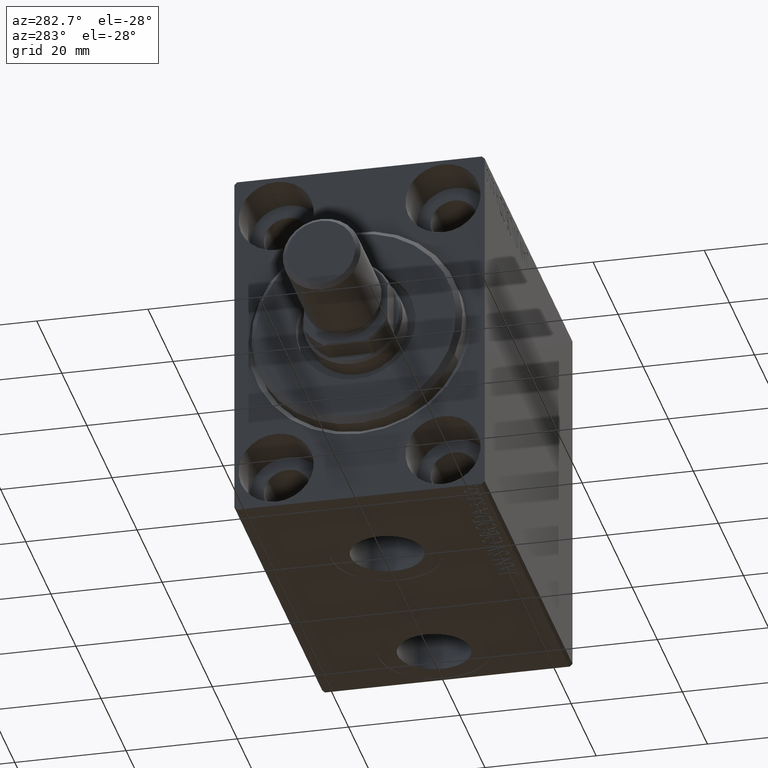
[diagram: clean part render]
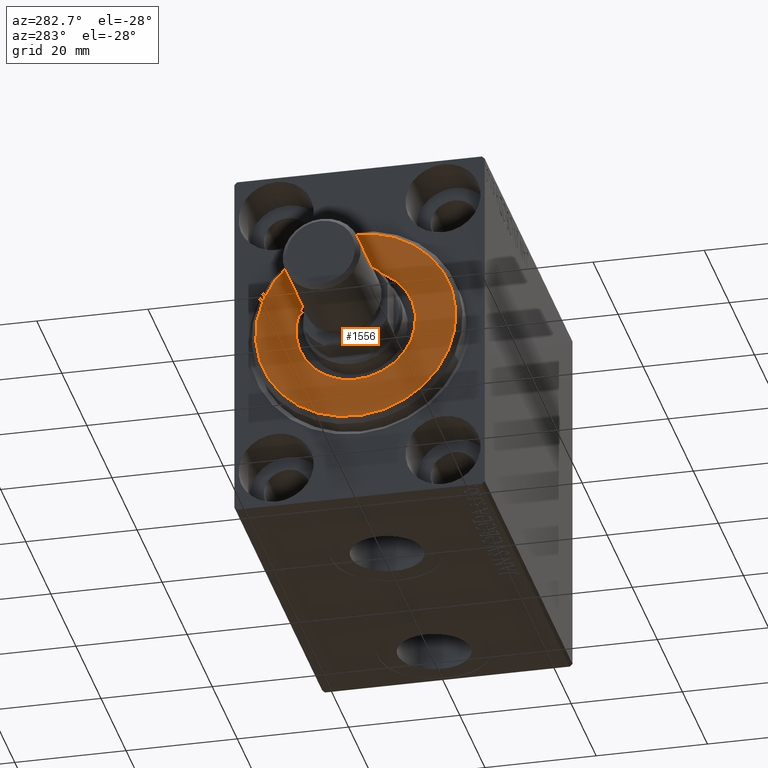
[diagram: same view with one face highlighted and labeled with its STEP entity id]
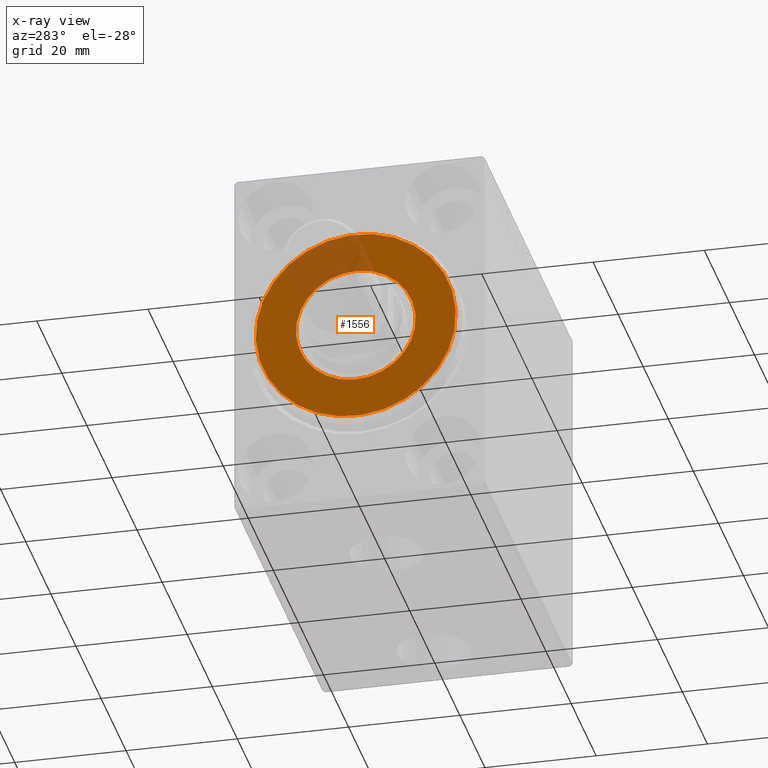
[diagram: x-ray of the same camera — body ghosted, the highlighted face saturated]
A machine part, auxiliary view. The second image highlights one B-rep face of the part: STEP entity #1556.
The next image is the same camera in x-ray: the body ghosted, the highlighted face saturated — about 16% of this face is hidden behind the body in this view.
In plain terms, the highlighted planar face has unit normal (-1, 0, 0).
Its self-contained STEP definition (entity closure, byte-faithful):
#48 = CIRCLE ( 'NONE', #30871, 10.75000000000000000 ) ;
#521 = DIRECTION ( 'NONE',  ( 0.000000000000000000, 0.000000000000000000, -1.000000000000000000 ) ) ;
#1556 = ADVANCED_FACE ( 'NONE', ( #26735, #27380 ), #31406, .T. ) ;
#1610 = CARTESIAN_POINT ( 'NONE',  ( 3.000000000000000000, 1.316495309083404223E-15, -10.75000000000000000 ) ) ;
#2931 = CARTESIAN_POINT ( 'NONE',  ( 3.000000000000000000, 2.265596578422603002E-15, -17.99999999999999645 ) ) ;
#3987 = CIRCLE ( 'NONE', #28400, 17.99999999999999645 ) ;
#4240 = DIRECTION ( 'NONE',  ( 0.000000000000000000, 0.000000000000000000, -1.000000000000000000 ) ) ;
#7012 = DIRECTION ( 'NONE',  ( -1.000000000000000000, 0.000000000000000000, -0.000000000000000000 ) ) ;
#7055 = DIRECTION ( 'NONE',  ( -1.000000000000000000, 0.000000000000000000, -0.000000000000000000 ) ) ;
#8629 = EDGE_CURVE ( 'NONE', #12204, #41847, #48, .T. ) ;
#10812 = DIRECTION ( 'NONE',  ( 0.000000000000000000, 0.000000000000000000, -1.000000000000000000 ) ) ;
#12188 = CARTESIAN_POINT ( 'NONE',  ( 3.000000000000000000, 0.000000000000000000, 10.75000000000000000 ) ) ;
#12204 = VERTEX_POINT ( 'NONE', #12188 ) ;
#13543 = AXIS2_PLACEMENT_3D ( 'NONE', #14356, #41746, #4240 ) ;
#13786 = CARTESIAN_POINT ( 'NONE',  ( 3.000000000000000000, 0.000000000000000000, 0.000000000000000000 ) ) ;
#14356 = CARTESIAN_POINT ( 'NONE',  ( 3.000000000000000000, 0.000000000000000000, 0.000000000000000000 ) ) ;
#14552 = AXIS2_PLACEMENT_3D ( 'NONE', #13786, #7055, #40950 ) ;
#15311 = VERTEX_POINT ( 'NONE', #2931 ) ;
#18716 = ORIENTED_EDGE ( 'NONE', *, *, #26436, .T. ) ;
#18814 = EDGE_CURVE ( 'NONE', #41847, #12204, #23884, .T. ) ;
#19794 = AXIS2_PLACEMENT_3D ( 'NONE', #42403, #34981, #41959 ) ;
#20544 = DIRECTION ( 'NONE',  ( 1.000000000000000000, -0.000000000000000000, 0.000000000000000000 ) ) ;
#21695 = ORIENTED_EDGE ( 'NONE', *, *, #18814, .T. ) ;
#21936 = CIRCLE ( 'NONE', #19794, 17.99999999999999645 ) ;
#22678 = EDGE_LOOP ( 'NONE', ( #32165, #21695 ) ) ;
#23884 = CIRCLE ( 'NONE', #14552, 10.75000000000000000 ) ;
#26436 = EDGE_CURVE ( 'NONE', #15311, #41247, #3987, .T. ) ;
#26735 = FACE_OUTER_BOUND ( 'NONE', #32337, .T. ) ;
#27380 = FACE_BOUND ( 'NONE', #22678, .T. ) ;
#27875 = CARTESIAN_POINT ( 'NONE',  ( 3.000000000000000000, 0.000000000000000000, 0.000000000000000000 ) ) ;
#28141 = CARTESIAN_POINT ( 'NONE',  ( 3.000000000000000000, 0.000000000000000000, 0.000000000000000000 ) ) ;
#28400 = AXIS2_PLACEMENT_3D ( 'NONE', #28141, #20544, #521 ) ;
#30871 = AXIS2_PLACEMENT_3D ( 'NONE', #27875, #7012, #10812 ) ;
#31406 = PLANE ( 'NONE',  #13543 ) ;
#32165 = ORIENTED_EDGE ( 'NONE', *, *, #8629, .T. ) ;
#32337 = EDGE_LOOP ( 'NONE', ( #34267, #18716 ) ) ;
#34267 = ORIENTED_EDGE ( 'NONE', *, *, #39583, .T. ) ;
#34486 = CARTESIAN_POINT ( 'NONE',  ( 3.000000000000000000, 0.000000000000000000, 17.99999999999999645 ) ) ;
#34981 = DIRECTION ( 'NONE',  ( 1.000000000000000000, -0.000000000000000000, 0.000000000000000000 ) ) ;
#39583 = EDGE_CURVE ( 'NONE', #41247, #15311, #21936, .T. ) ;
#40950 = DIRECTION ( 'NONE',  ( 0.000000000000000000, 0.000000000000000000, -1.000000000000000000 ) ) ;
#41247 = VERTEX_POINT ( 'NONE', #34486 ) ;
#41746 = DIRECTION ( 'NONE',  ( 1.000000000000000000, -0.000000000000000000, 0.000000000000000000 ) ) ;
#41847 = VERTEX_POINT ( 'NONE', #1610 ) ;
#41959 = DIRECTION ( 'NONE',  ( 0.000000000000000000, 0.000000000000000000, -1.000000000000000000 ) ) ;
#42403 = CARTESIAN_POINT ( 'NONE',  ( 3.000000000000000000, 0.000000000000000000, 0.000000000000000000 ) ) ;